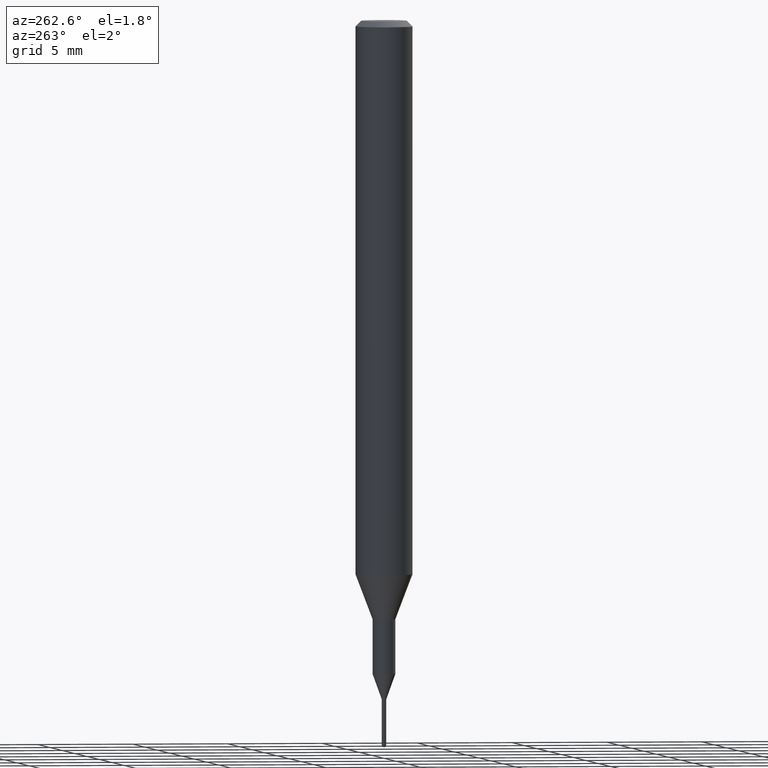
[diagram: clean part render]
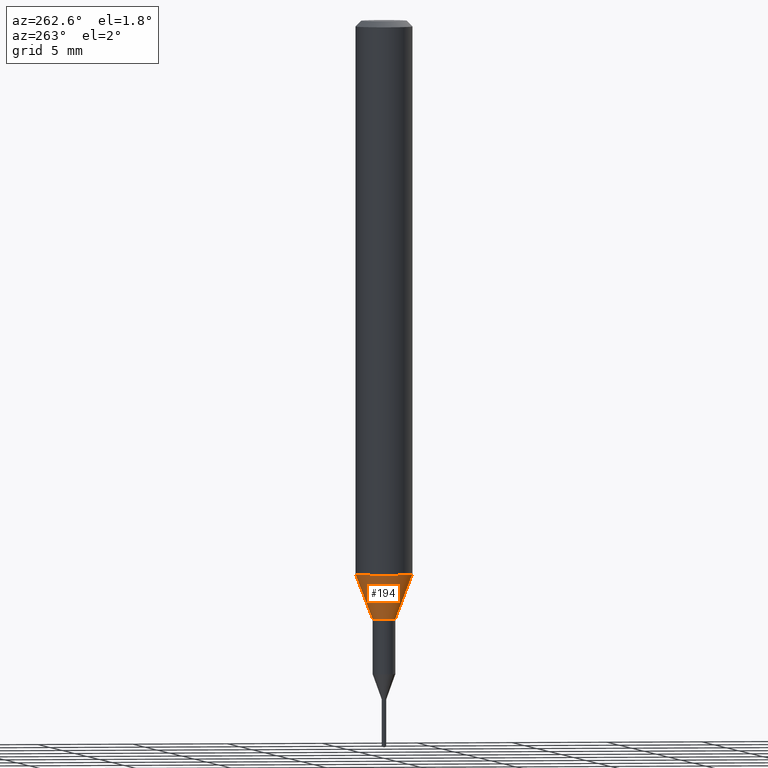
[diagram: same view with one face highlighted and labeled with its STEP entity id]
A machine part, auxiliary view. The second image highlights one B-rep face of the part: STEP entity #194.
In plain terms, the highlighted conical surface has half-angle 20.997 deg.
Its self-contained STEP definition (entity closure, byte-faithful):
#144=EDGE_CURVE('',#188,#260,#325,.T.);
#166=VERTEX_POINT('',#349);
#188=VERTEX_POINT('',#377);
#194=ADVANCED_FACE('',(#383),#384,.T.);
#200=VERTEX_POINT('',#390);
#236=EDGE_CURVE('',#260,#166,#429,.T.);
#250=EDGE_CURVE('',#188,#200,#444,.T.);
#260=VERTEX_POINT('',#455);
#264=EDGE_CURVE('',#166,#200,#460,.T.);
#325=LINE('',#524,#525);
#349=CARTESIAN_POINT('',(0.0,1.5,-28.955));
#377=CARTESIAN_POINT('',(7.34763812293426E-017,-0.6,-31.3));
#383=FACE_OUTER_BOUND('',#598,.T.);
#384=CONICAL_SURFACE('',#599,1.05,0.366459241971866);
#390=CARTESIAN_POINT('',(0.0,0.6,-31.3));
#429=CIRCLE('',#658,1.5);
#444=CIRCLE('',#679,0.6);
#455=CARTESIAN_POINT('',(1.83690953073357E-016,-1.5,-28.955));
#460=LINE('',#699,#700);
#524=CARTESIAN_POINT('',(1.2858366715135E-016,-1.05,-30.1275));
#525=VECTOR('',#756,1.0);
#598=EDGE_LOOP('',(#836,#837,#838,#839));
#599=AXIS2_PLACEMENT_3D('',#840,#841,#842);
#658=AXIS2_PLACEMENT_3D('',#886,#887,#888);
#679=AXIS2_PLACEMENT_3D('',#900,#901,#902);
#699=CARTESIAN_POINT('',(-1.2858366715135E-016,1.05,-30.1275));
#700=VECTOR('',#921,1.0);
#756=DIRECTION('',(4.38791184365088E-017,-0.358312026550805,0.93360189140182));
#836=ORIENTED_EDGE('',*,*,#264,.T.);
#837=ORIENTED_EDGE('',*,*,#250,.F.);
#838=ORIENTED_EDGE('',*,*,#144,.T.);
#839=ORIENTED_EDGE('',*,*,#236,.T.);
#840=CARTESIAN_POINT('',(0.0,0.0,-30.1275));
#841=DIRECTION('',(-0.0,-0.0,1.0));
#842=DIRECTION('',(0.0,1.0,0.0));
#886=CARTESIAN_POINT('',(0.0,0.0,-28.955));
#887=DIRECTION('',(0.0,0.0,-1.0));
#888=DIRECTION('',(0.0,1.0,0.0));
#900=CARTESIAN_POINT('',(0.0,0.0,-31.3));
#901=DIRECTION('',(0.0,0.0,-1.0));
#902=DIRECTION('',(0.0,1.0,0.0));
#921=DIRECTION('',(4.38791184365088E-017,-0.358312026550805,-0.93360189140182));